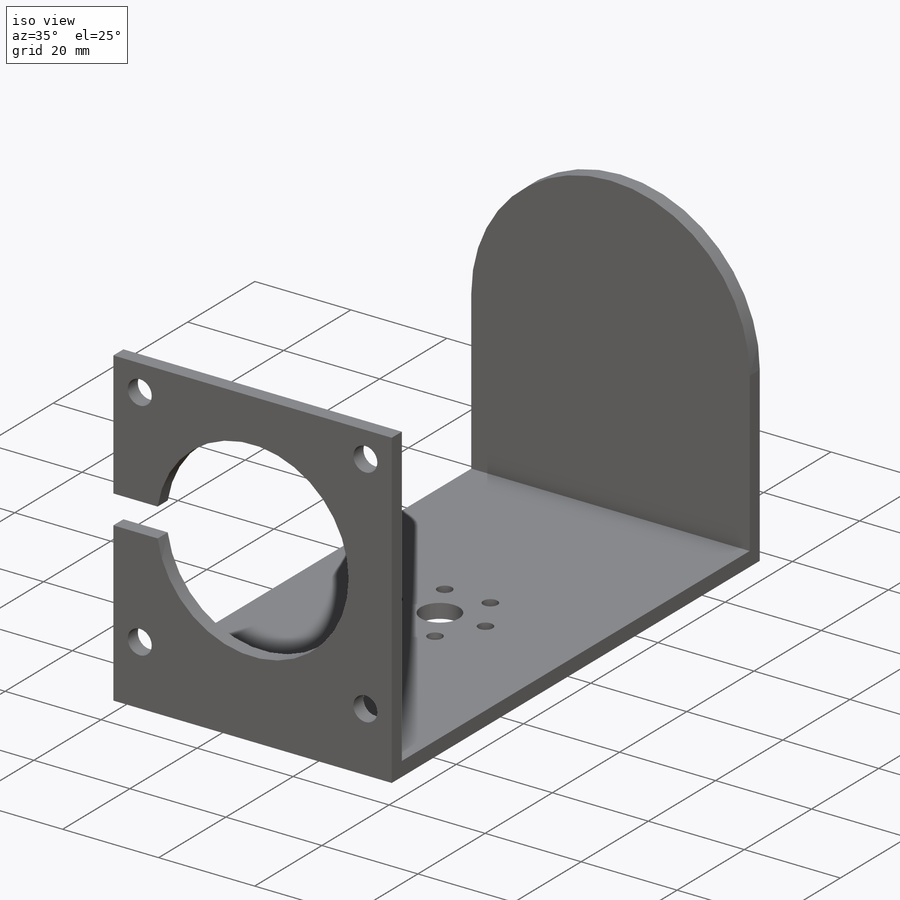
[diagram: iso view]
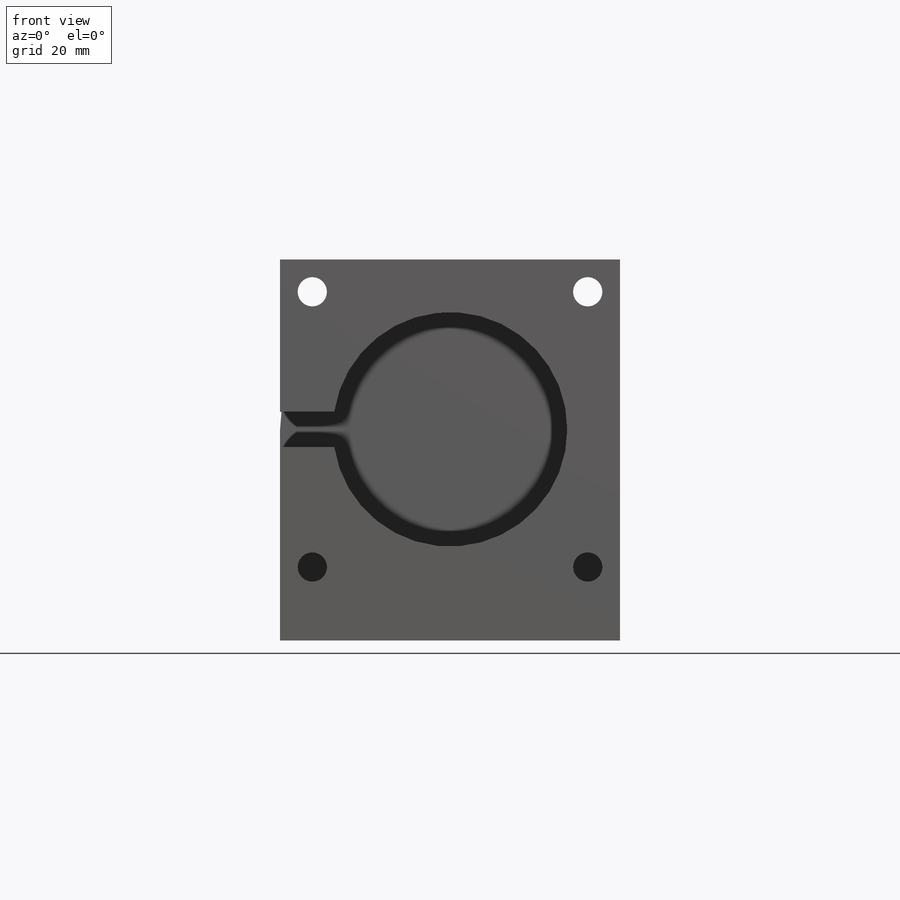
[diagram: front view]
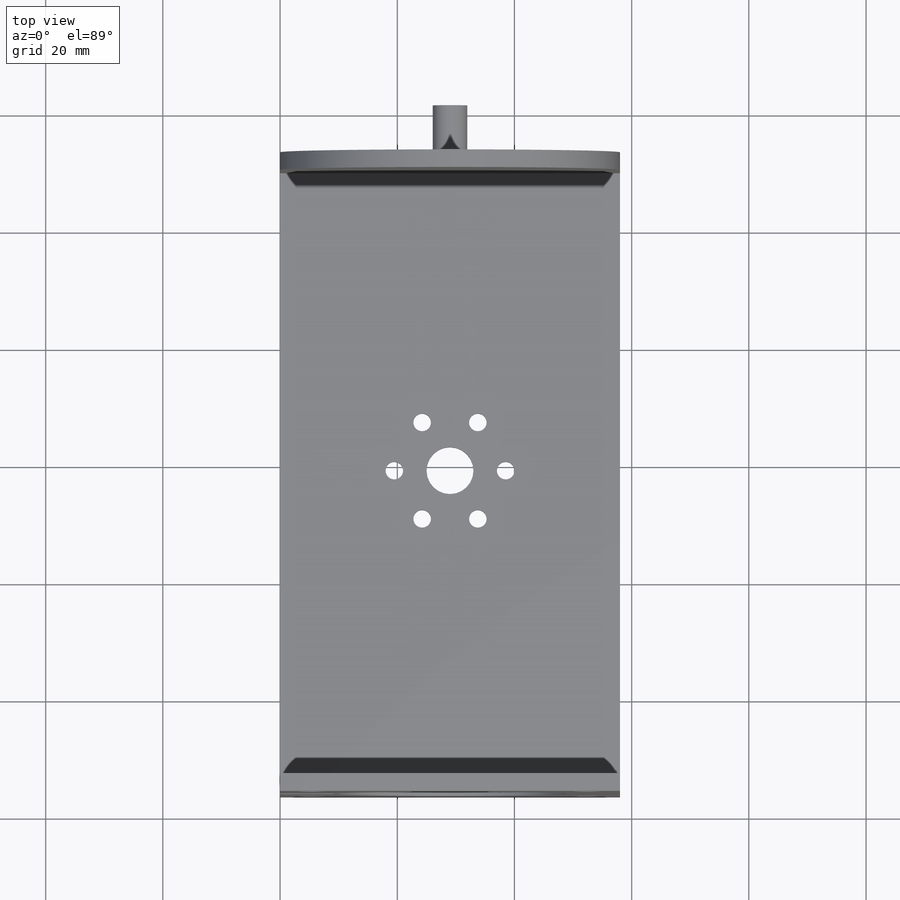
[diagram: top view]
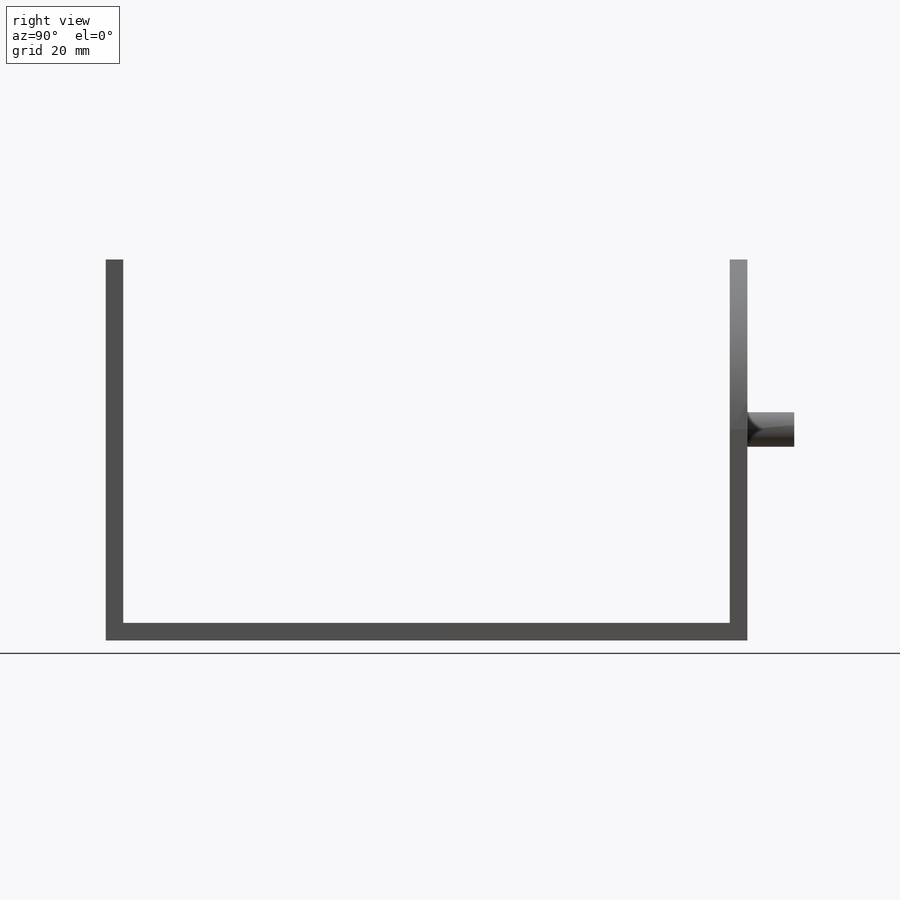
[diagram: right view]
SOLIDWORKS PART (.sldprt)
format: sldprt  version: not decoded by parser v0  size: 302,080 bytes
history: native  units: mm
features: sketch x11, cut_extrude x7, extrude x2, material x1 (+12 scaffold rows collapsed)
feature tree (33):
  scaffold x12  (default folders/planes/origin — collapsed)
  material  "1060 Alloy"
  sketch  "Sketch1"  dims[D1=60.0mm D2=103.5mm D3=3.0mm D4=65.0mm D5=109.5mm D6=3.0mm]
  extrude  "Boss-Extrude1"  Depth=58mm
  sketch  "Sketch2"  dims[c1.D4=5.0mm c1.D5=40.0mm c1.D1=5.5mm c1.D2=5.5mm c1.D3=29.0mm c2.D4=~9.854377mm]
  cut_extrude  "Cut-Extrude1"  Depth=58mm
  sketch  "Sketch3"  dims[c1.D2=29.0mm c1.D1=29.0mm c2.D2=~41.012193mm]
  cut_extrude  "Cut-Extrude2"  Depth=58mm
  sketch  "Sketch4"  dims[c1.D2=29.0mm c1.D1=29.0mm c2.D2=~41.012193mm]
  cut_extrude  "Cut-Extrude3"  Depth=58mm
  sketch  "Sketch5"  dims[D1=5.9mm]
  extrude  "Boss-Extrude2"  Depth=8mm
  sketch  "Sketch7"  dims[c1.D1=3.0mm c1.D2=5.5mm c1.D3=~7.281932mm c2.D2=6.0mm c2.D3=6.0mm]
  cut_extrude  "Cut-Extrude5"  Depth=10mm
  sketch  "Sketch13"  dims[D1=53.75mm D2=~37.515594mm]
  sketch  "Sketch18"  dims[D1=19.0mm D2=~31.345057mm]
  sketch  "Sketch25"  dims[D1=8.0mm]
  cut_extrude  "Cut-Extrude6"  Depth=10mm
  sketch  "Sketch26"  dims[D1=2.0mm D2=103.5mm]
  cut_extrude  "Cut-Extrude7"  Depth=90mm
  sketch  "Sketch29"  dims[D1=3.0mm D2=6.0]
  cut_extrude  "Cut-Extrude8"  Depth=10mm
decode coverage: 20 of 20 modeling features carry decoded parameters
note: ~ marks probable driven/reference dimensions
note: suppression state not decoded; provenance and decode notes live in map.json
